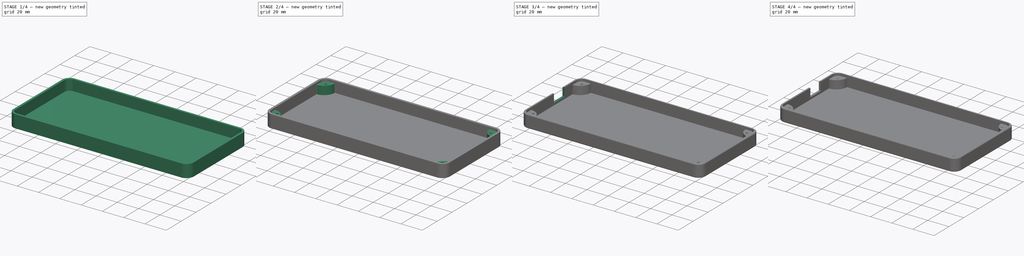
[diagram: build sequence overview — one tinted view per stage of 4, left to right]
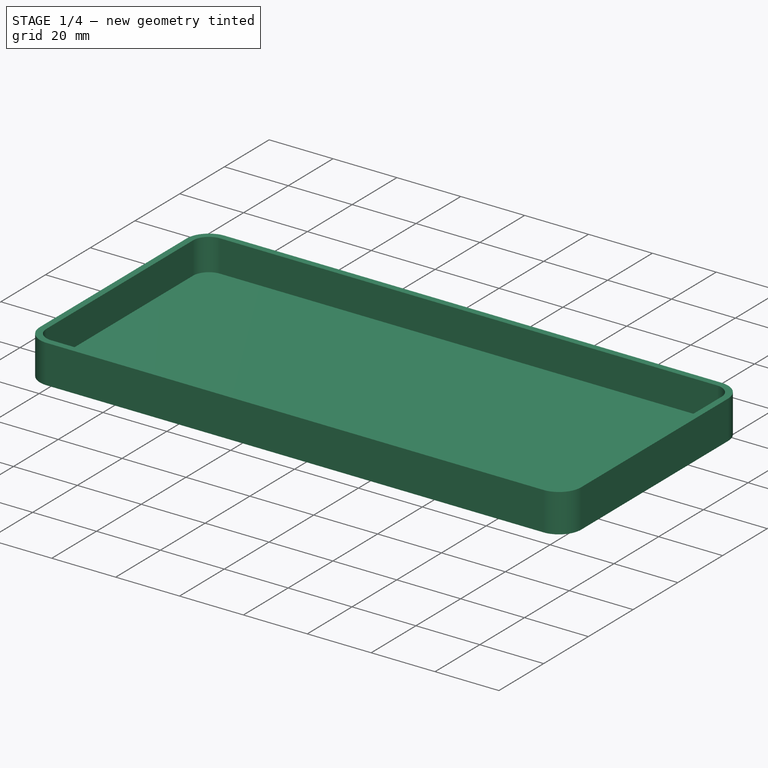
[diagram: stage 1 of 4 — iso view after this stage's code; geometry added in this stage tinted green]
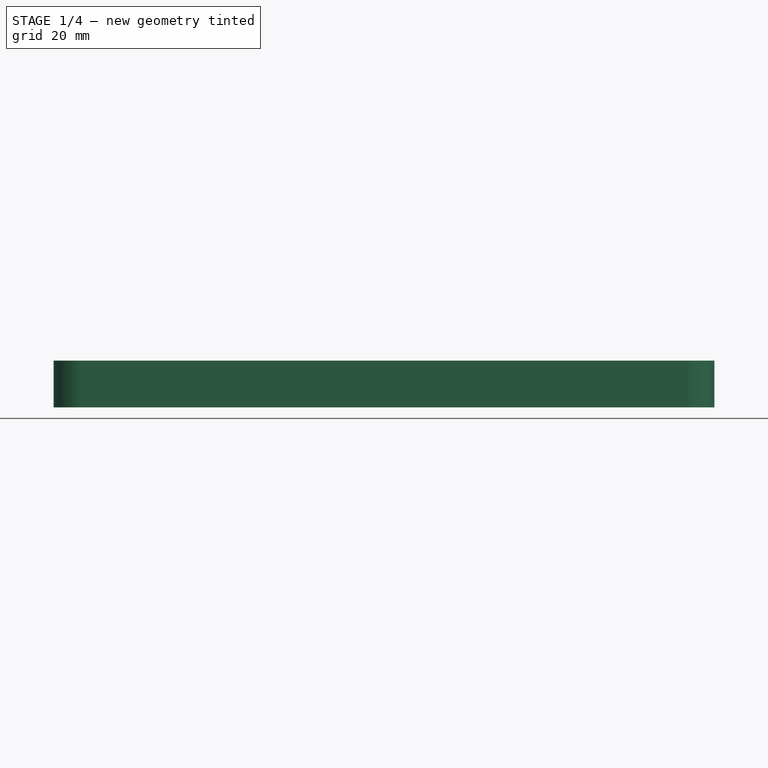
[diagram: stage 1 of 4 — front view after this stage's code; geometry added in this stage tinted green]
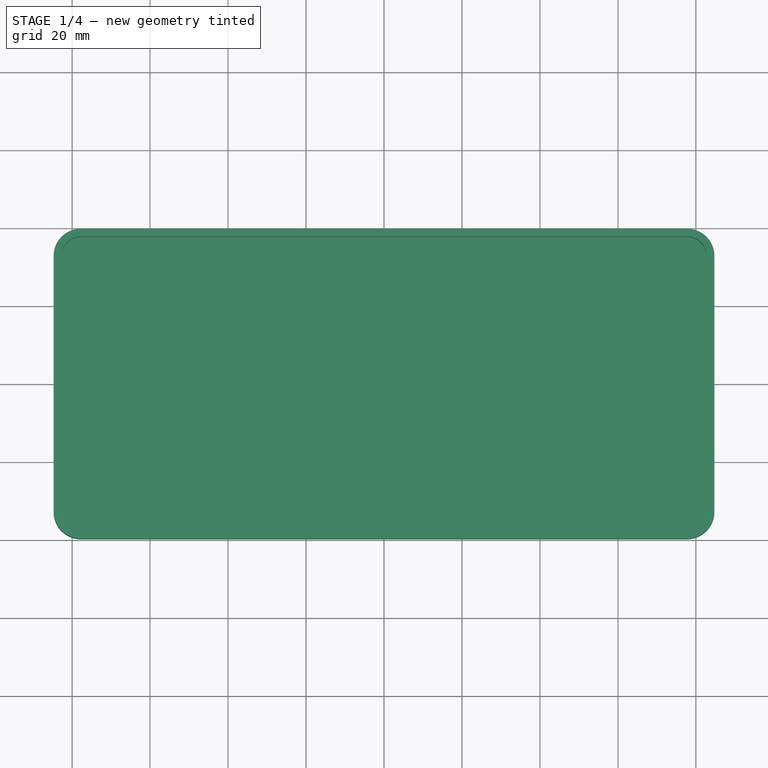
[diagram: stage 1 of 4 — top view after this stage's code; geometry added in this stage tinted green]
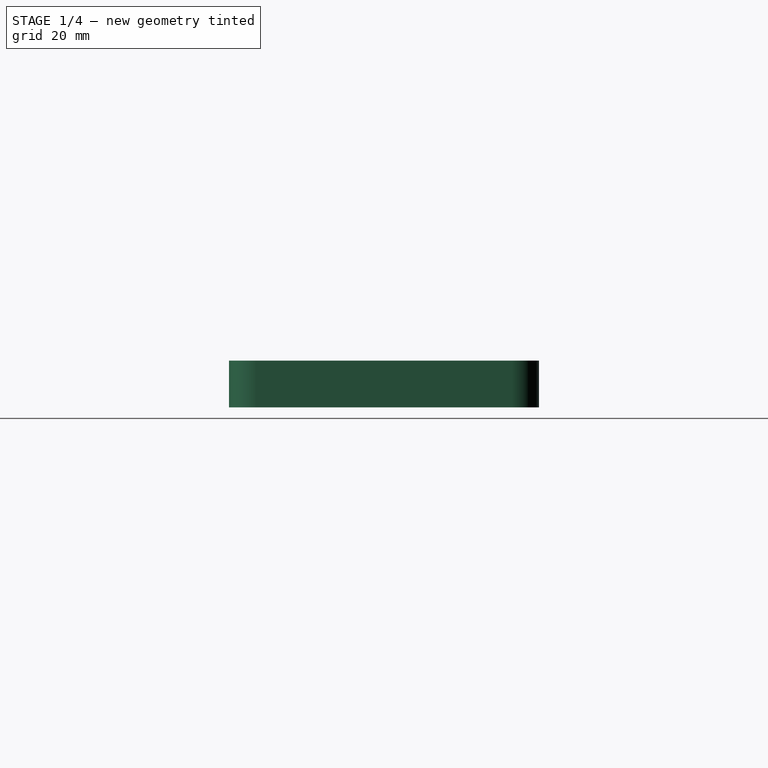
[diagram: stage 1 of 4 — right view after this stage's code; geometry added in this stage tinted green]
FCSTD DOCUMENT  (FreeCAD 0.21R33771 (Git))
Label: printable
License: All rights reserved
LicenseURL: https://en.wikipedia.org/wiki/All_rights_reserved
objects: Sketcher::SketchObject×3, PartDesign::Pad×2, PartDesign::Mirrored×2, PartDesign::Fillet×2, Part::FeaturePython×2, Part::Feature×2, Spreadsheet::Sheet×1, PartDesign::Thickness×1, PartDesign::MultiTransform×1, PartDesign::Pocket×1, Part::Mirroring×1, App::LinkGroup×1, PartDesign::Hole×1, PartDesign::Body×1
note: 26 computed .brp shape members not serialized (recipe doc carries the construction recipe); baked Part::Feature solids carry a one-line shape summary decoded from their .brp

FEATURE [Spreadsheet::Sheet] Spreadsheet
  cells = A2='box_width; B2(box_width)==75 + B14; A3='box_length; B3(box_length)==165 + B14; A4='box_corner_radius; B4(box_corner_radius)=5; A5='box_height; B5(box_height)=10; A6='box_outter_thickness; B6(box_outter_thickness)=2; A7='lug_height; B7(lug_height)==B5 - B10 - B14; A8='lug_radius; B8(lug_radius)=10; A9='screw_thread_dia; B9(screw_thread_dia)=2; A10='board_height; B10(board_height)=1.6; A11='lug_vert_from_mid; B11(lug_vert_from_mid)==B2 / 2; A12='lug_hor_from_mid; B12(lug_hor_from_mid)==B3 / 2; A13='lug_to_screw_thread; B13(lug_to_screw_thread)==5 + B14 / 2; A14='board_to_case_offset; B14(board_to_case_offset)=0.5; A15='lug_width; B15(lug_width)=5; A16='logo_size; B16(logo_size)=50
FEATURE [Sketcher::SketchObject] Sketch
  FullyConstrained = true
  MapMode = 5
  Support = -> [XY_Plane001]
  expr: Constraints[20] = Spreadsheet.box_width
  expr: Constraints[21] = Spreadsheet.box_length
  sketch-geometry (10):
    g0: ArcOfCircle CenterX=-77.75 CenterY=32.75 CenterZ=0 NormalX=0 NormalY=0 NormalZ=1 AngleXU=0 Radius=5 StartAngle=1.5708 EndAngle=3.14159
    g1: LineSegment StartX=-77.75 StartY=37.75 StartZ=0 EndX=77.75 EndY=37.75 EndZ=0
    g2: ArcOfCircle CenterX=77.75 CenterY=32.75 CenterZ=0 NormalX=0 NormalY=0 NormalZ=1 AngleXU=0 Radius=5 StartAngle=-4.17e-14 EndAngle=1.5708
    g3: LineSegment StartX=82.75 StartY=32.75 StartZ=0 EndX=82.75 EndY=-32.75 EndZ=0
    g4: ArcOfCircle CenterX=77.75 CenterY=-32.75 CenterZ=0 NormalX=0 NormalY=0 NormalZ=1 AngleXU=0 Radius=5 StartAngle=4.71239 EndAngle=6.28319
    g5: LineSegment StartX=77.75 StartY=-37.75 StartZ=0 EndX=-77.75 EndY=-37.75 EndZ=0
    g6: ArcOfCircle CenterX=-77.75 CenterY=-32.75 CenterZ=0 NormalX=0 NormalY=0 NormalZ=1 AngleXU=0 Radius=5 StartAngle=3.14159 EndAngle=4.71239
    g7: LineSegment StartX=-82.75 StartY=-32.75 StartZ=0 EndX=-82.75 EndY=32.75 EndZ=0
    g8: GeomPoint X=-82.75 Y=37.75 Z=0
    g9: GeomPoint X=82.75 Y=-37.75 Z=0
  constraints (23):
    c: Tangent(g0,g1) = 1.5708
    c: Tangent(g1,g2) = 1.5708
    c: Tangent(g2,g3) = 1.5708
    c: Tangent(g3,g4) = 1.5708
    c: Tangent(g4,g5) = 1.5708
    c: Tangent(g5,g6) = 1.5708
    c: Tangent(g6,g7) = 1.5708
    c: Tangent(g7,g0) = 1.5708
    c: Horizontal(g1)
    c: Horizontal(g5)
    c: Vertical(g3)
    c: Vertical(g7)
    c: Equal(g0,g2)
    c: Equal(g2,g4)
    c: Equal(g4,g6)
    c: PointOnObject(g8,g1)
    c: PointOnObject(g8,g7)
    c: PointOnObject(g9,g3)
    c: PointOnObject(g9,g5)
    c: Symmetric(g0,g4,g-1)
    c: DistanceY(g5,g0) = 75.5
    c: DistanceX(g0,g2) = 165.5
    c: Radius(g0) = 5
FEATURE [PartDesign::Pad] Pad
  Direction = (0,0,1)
  Length = 10
  Length2 = 10
  Profile = -> Sketch
  ReferenceAxis = -> Sketch [N_Axis]
  Type = 0
  expr: Length = Spreadsheet.box_height
FEATURE [PartDesign::Thickness] Thickness
  Base = -> Pad [Face10]
  BaseFeature = -> Pad
  Intersection = false
  Join = 1
  Mode = 0
  SupportTransform = false
  Value = 2
  expr: Value = Spreadsheet.box_outter_thickness
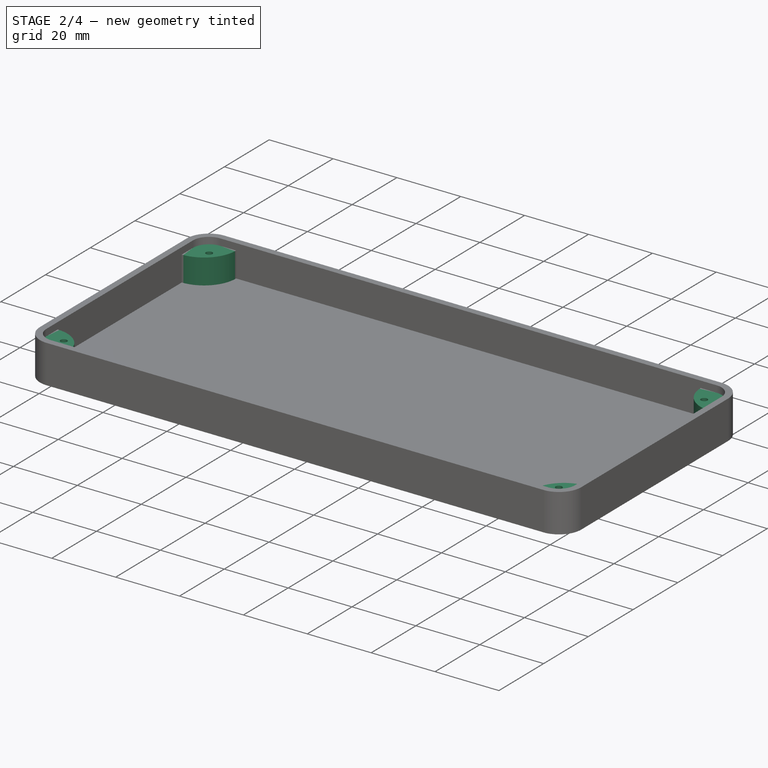
[diagram: stage 2 of 4 — iso view after this stage's code; geometry added in this stage tinted green]
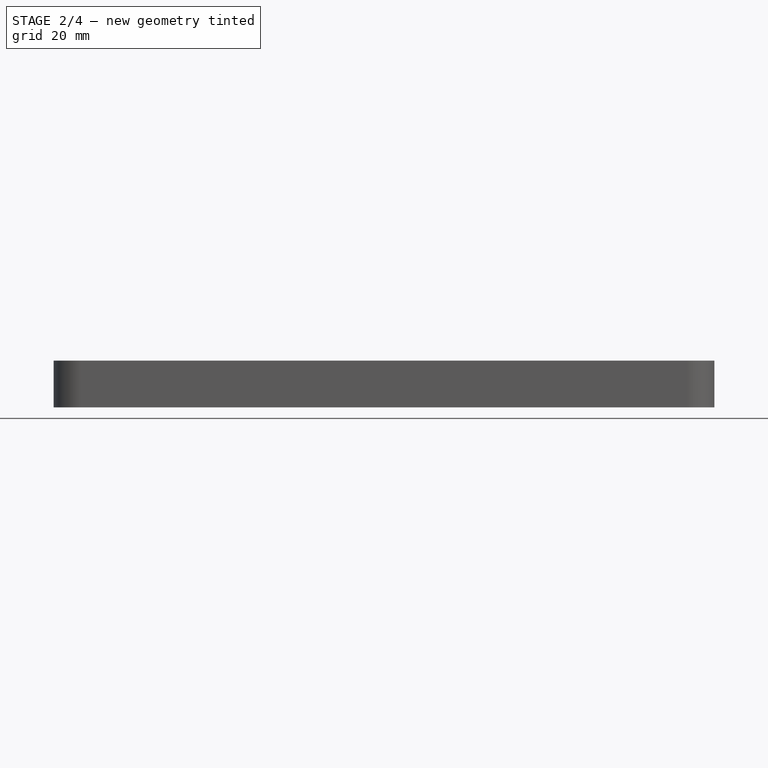
[diagram: stage 2 of 4 — front view after this stage's code; geometry added in this stage tinted green]
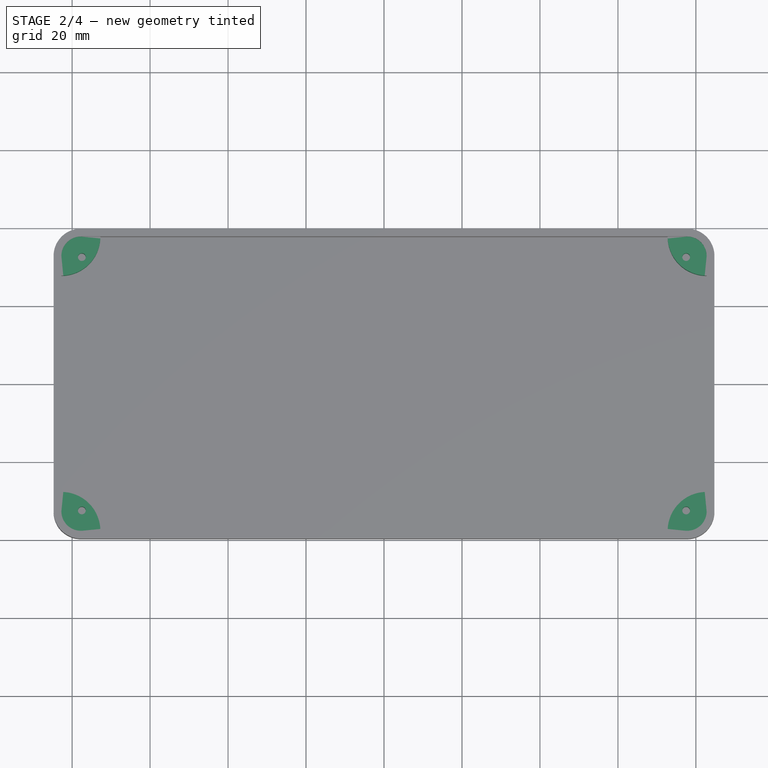
[diagram: stage 2 of 4 — top view after this stage's code; geometry added in this stage tinted green]
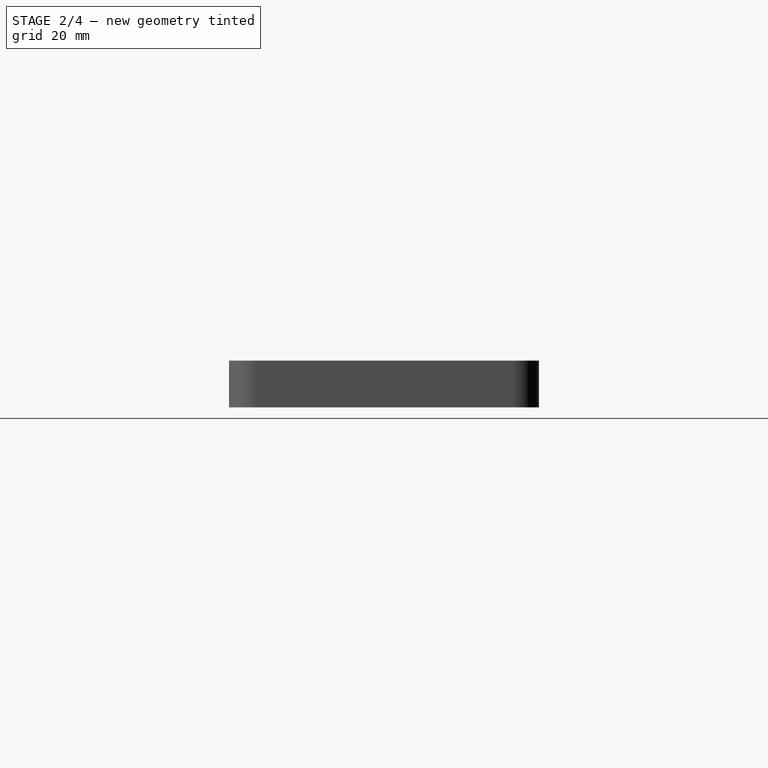
[diagram: stage 2 of 4 — right view after this stage's code; geometry added in this stage tinted green]
FEATURE [Sketcher::SketchObject] Sketch001
  ExternalGeometry = -> [Thickness]
  FullyConstrained = true
  MapMode = 5
  Support = -> [Thickness]
  expr: Constraints[0] = Spreadsheet.screw_thread_dia
  expr: Constraints[11] = Spreadsheet.lug_radius
  expr: Constraints[14] = Spreadsheet.box_corner_radius
  expr: Constraints[1] = Spreadsheet.lug_to_screw_thread
  expr: Constraints[2] = Spreadsheet.lug_to_screw_thread
  expr: Constraints[7] = Spreadsheet.lug_width
  expr: Constraints[8] = Spreadsheet.lug_width
  sketch-geometry (5):
    g0: Circle CenterX=-77.5 CenterY=32.5 CenterZ=0 NormalX=0 NormalY=0 NormalZ=1 AngleXU=0 Radius=1
    g1: LineSegment StartX=-77.75 StartY=37.75 StartZ=0 EndX=-72.75 EndY=37.75 EndZ=0
    g2: LineSegment StartX=-82.75 StartY=32.75 StartZ=0 EndX=-82.75 EndY=27.75 EndZ=0
    g3: ArcOfCircle CenterX=-82.75 CenterY=37.75 CenterZ=0 NormalX=0 NormalY=0 NormalZ=1 AngleXU=0 Radius=10 StartAngle=4.71239 EndAngle=6.28319
    g4: ArcOfCircle CenterX=-77.75 CenterY=32.75 CenterZ=0 NormalX=0 NormalY=0 NormalZ=1 AngleXU=0 Radius=5 StartAngle=1.5708 EndAngle=3.14159
  constraints (15):
    c: Diameter(g0) = 2
    c: DistanceY(g0,g-3) = 5.25
    c: DistanceX(g-4,g0) = 5.25
    c: Coincident(g1,g-3)
    c: Horizontal(g1)
    c: Coincident(g2,g-4)
    c: PointOnObject(g2,g-4)
    c: DistanceX(g1,g1) = 5
    c: DistanceY(g2,g2) = 5
    c: Coincident(g3,g1)
    c: Coincident(g3,g2)
    c: Radius(g3) = 10
    c: Coincident(g4,g2)
    c: Coincident(g4,g1)
    c: Radius(g4) = 5
FEATURE [PartDesign::Pad] Pad001
  BaseFeature = -> Thickness
  Direction = (0,0,1)
  Length = 7.9
  Length2 = 10
  Profile = -> Sketch001
  ReferenceAxis = -> Sketch001 [N_Axis]
  Type = 0
  expr: Length = Spreadsheet.lug_height
FEATURE [PartDesign::Mirrored] Mirrored
  MirrorPlane = -> Sketch001 [V_Axis]
FEATURE [PartDesign::Mirrored] Mirrored001
  MirrorPlane = -> Sketch001 [H_Axis]
FEATURE [PartDesign::MultiTransform] MultiTransform
  BaseFeature = -> Pad001
  Originals = -> [Pad001]
  Transformations = -> [Mirrored,Mirrored001]
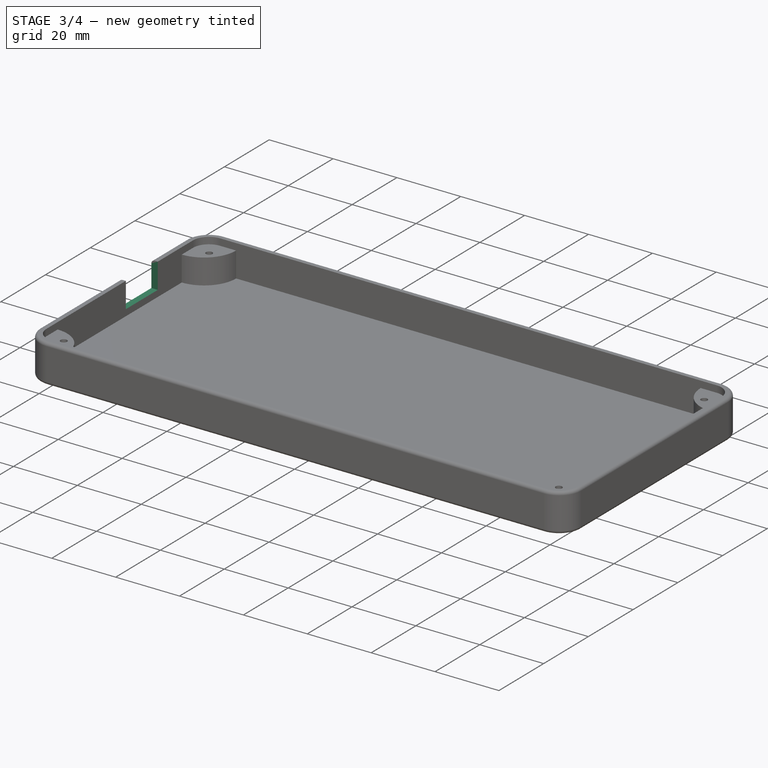
[diagram: stage 3 of 4 — iso view after this stage's code; geometry added in this stage tinted green]
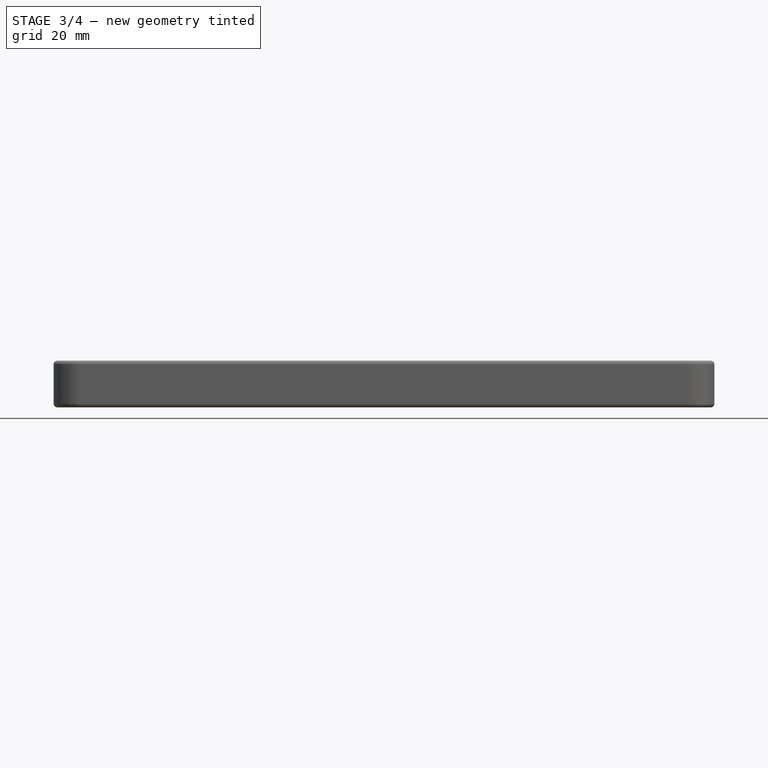
[diagram: stage 3 of 4 — front view after this stage's code; geometry added in this stage tinted green]
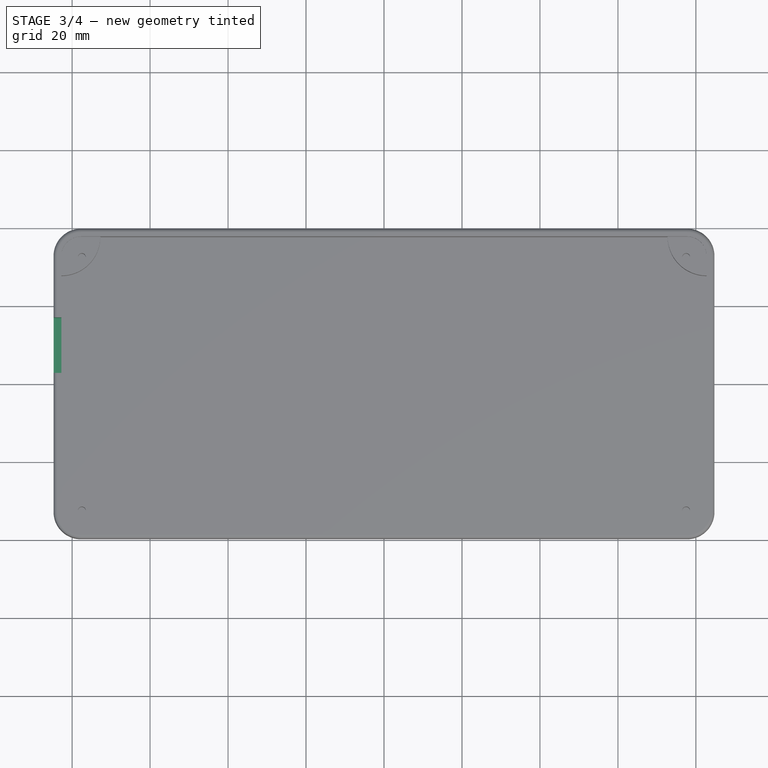
[diagram: stage 3 of 4 — top view after this stage's code; geometry added in this stage tinted green]
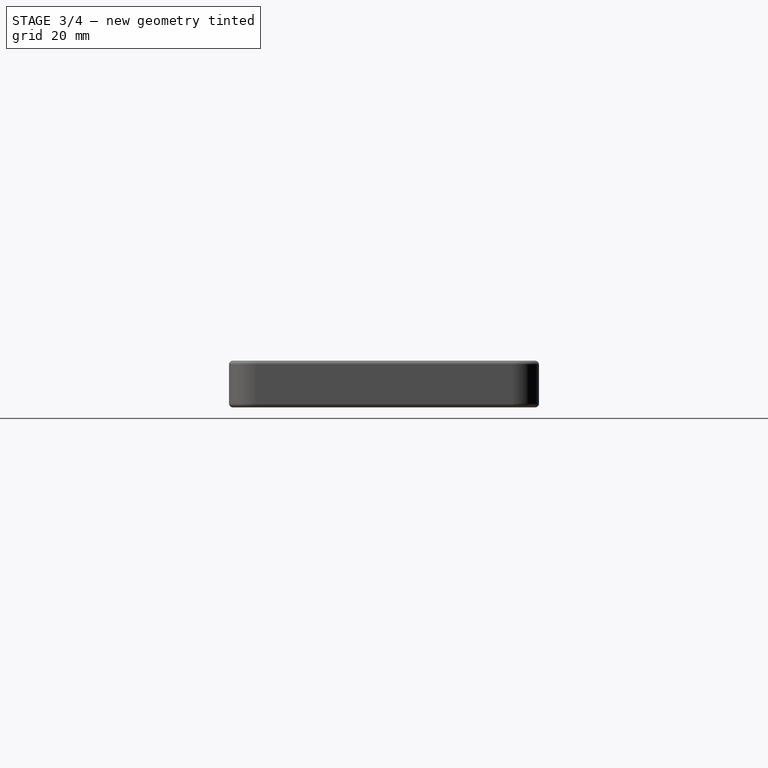
[diagram: stage 3 of 4 — right view after this stage's code; geometry added in this stage tinted green]
FEATURE [Sketcher::SketchObject] Sketch003
  ExternalGeometry = -> [MultiTransform]
  FullyConstrained = true
  MapMode = 5
  Placement = pos=(-84.75,0,0) rot=(0.57735,-0.57735,-0.57735;2.0944rad)
  Support = -> [MultiTransform]
  sketch-geometry (4):
    g0: LineSegment StartX=-17 StartY=10 StartZ=0 EndX=-2.75 EndY=10 EndZ=0
    g1: LineSegment StartX=-2.75 StartY=10 StartZ=0 EndX=-2.75 EndY=2 EndZ=0
    g2: LineSegment StartX=-2.75 StartY=2 StartZ=0 EndX=-17 EndY=2 EndZ=0
    g3: LineSegment StartX=-17 StartY=2 StartZ=0 EndX=-17 EndY=10 EndZ=0
  constraints (12):
    c: Coincident(g0,g1)
    c: Coincident(g1,g2)
    c: Coincident(g2,g3)
    c: Coincident(g3,g0)
    c: Horizontal(g0)
    c: Horizontal(g2)
    c: Vertical(g1)
    c: Vertical(g3)
    c: PointOnObject(g0,g-3)
    c: DistanceY(g3,g3) = 8
    c: DistanceX(g0,g0) = 14.25
    c: DistanceX(g-4,g0) = 20.75
FEATURE [PartDesign::Pocket] Pocket
  BaseFeature = -> MultiTransform
  Direction = (1,0,0)
  Length = 5
  Length2 = 5
  Profile = -> Sketch003
  ReferenceAxis = -> Sketch003 [N_Axis]
  Type = 0
FEATURE [PartDesign::Fillet] Fillet
  Base = -> Pocket [Edge65,Edge67,Edge69,Edge71,Edge73,Edge75,Edge60,Edge63]
  BaseFeature = -> Pocket
  Radius = 1
  SupportTransform = false
  UseAllEdges = false
FEATURE [PartDesign::Fillet] Fillet001
  Base = -> Fillet [Edge18,Edge19,Edge20,Edge21,Edge22,Edge23,Edge6,Edge3,Edge11]
  BaseFeature = -> Fillet
  Radius = 1
  SupportTransform = false
  UseAllEdges = false
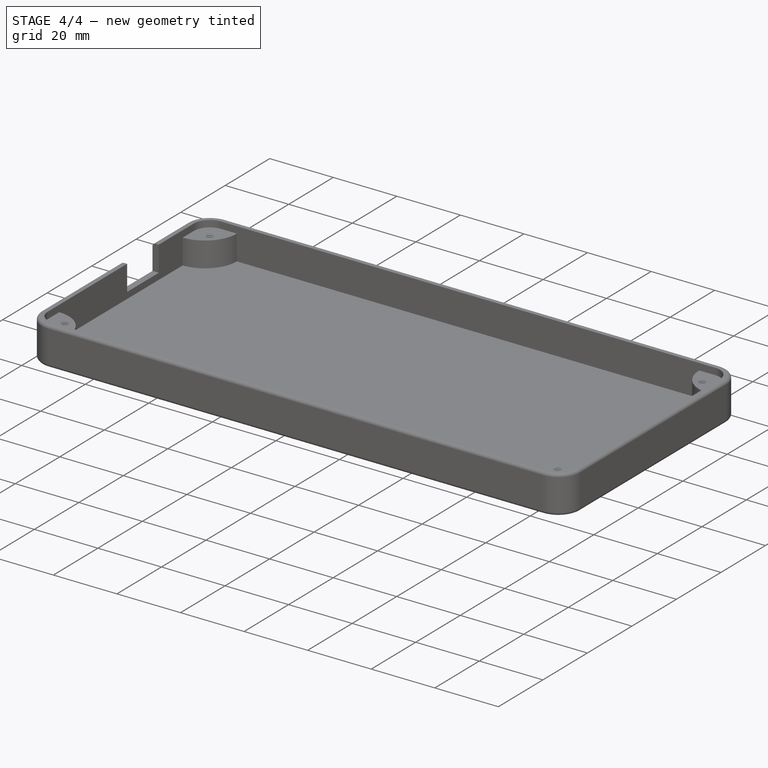
[diagram: stage 4 of 4 — iso view after this stage's code; geometry added in this stage tinted green]
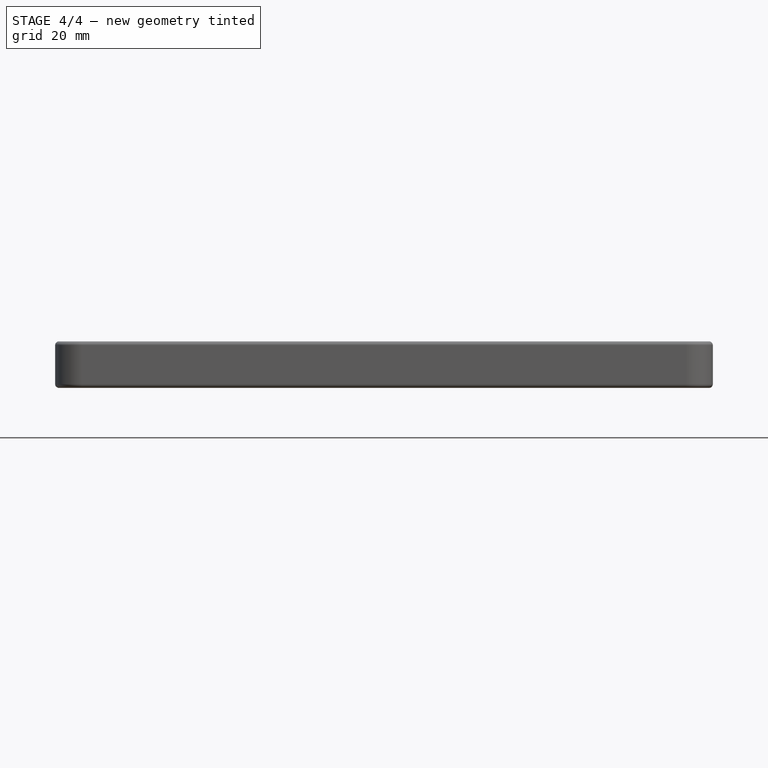
[diagram: stage 4 of 4 — front view after this stage's code; geometry added in this stage tinted green]
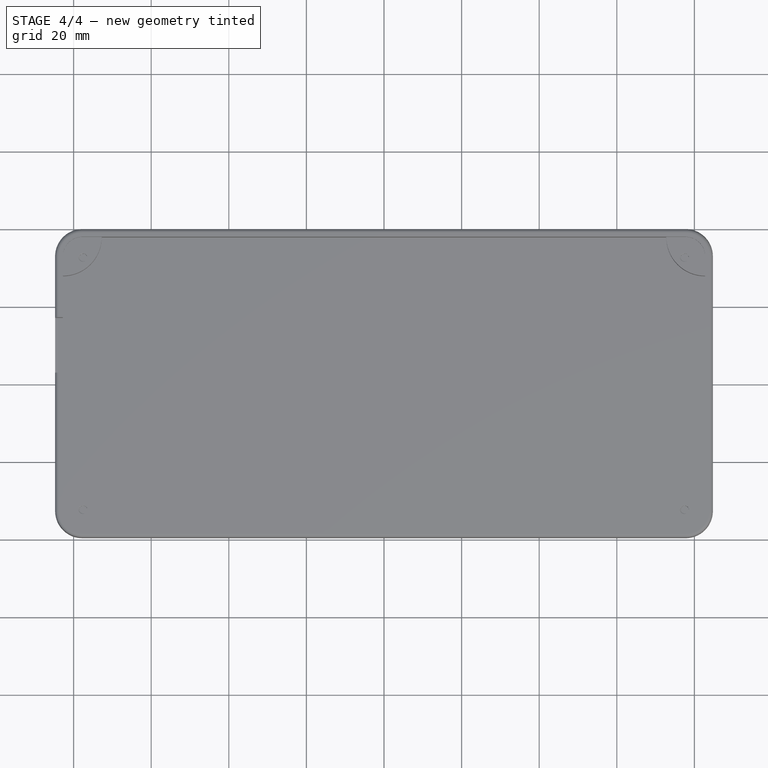
[diagram: stage 4 of 4 — top view after this stage's code; geometry added in this stage tinted green]
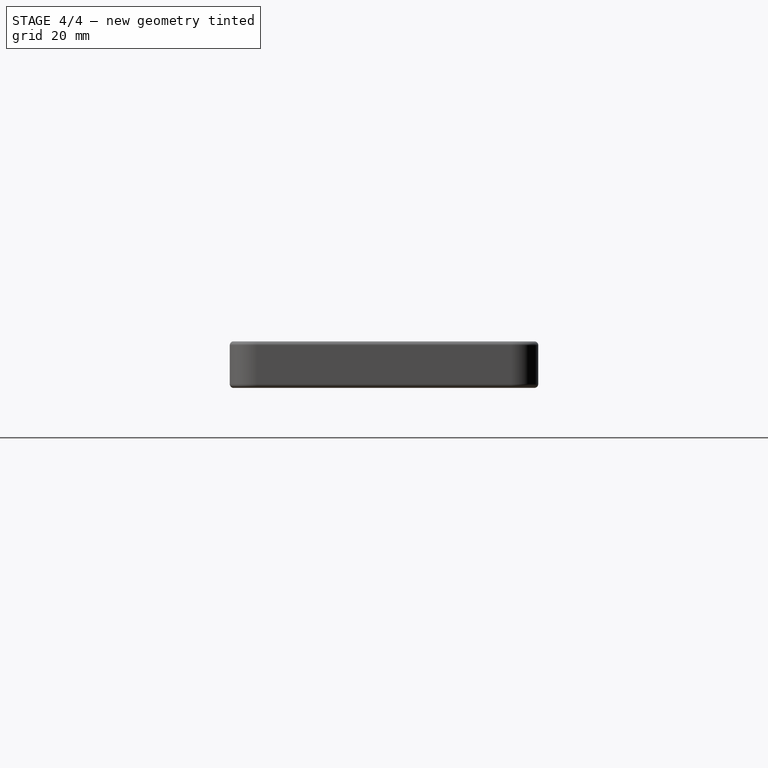
[diagram: stage 4 of 4 — right view after this stage's code; geometry added in this stage tinted green]
FEATURE [Part::FeaturePython] Tube  # WARN: FeaturePython — macro-defined, semantics opaque (R4)
  AttacherType = Attacher::AttachEngine3D
  Height = 0.001
  InnerRadius = 12.5
  OuterRadius = 13.5
  Placement = pos=(0,0,-12) rot=(0,0,1;0rad)
FEATURE [Part::Feature] path21_008  label="path21_009"
  shape: bbox 89.15 x 90.07 x 2e-07 mm, 1 faces, 0 solids (baked)
FEATURE [Part::FeaturePython] Clone  label="path21_010"  # Draft clone (typed FeaturePython)
  AttacherType = Attacher::AttachEngine3D
  Fuse = false
  Objects = -> [path21_008]
  Placement = pos=(-78.0602,23.9596,-12) rot=(0,0,1;0rad)
  Scale = (0.25,0.25,0.25)
FEATURE [Part::Mirroring] Mirror  label="path21_010 (mirrored)"
  Base = (-46.6259,6.38291,0)
  Normal = (0.161242,0.986915,0)
  Placement = pos=(-42.4965,-9.61758,0) rot=(0,0,1;3.46721rad)
  Source = -> Clone
FEATURE [App::LinkGroup] LinkGroup
  ElementList = -> [Tube,Mirror]
  LinkMode = 0
FEATURE [Part::Feature] Projection_Object  label="Projection Object"
  Placement = pos=(0,0,0.25) rot=(0,0,1;0rad)
  shape: bbox 27.02 x 27.02 x 2.021 mm, 116 faces, 2 solids (baked)
FEATURE [PartDesign::Hole] Hole
  BaseFeature = -> Fillet001
  CustomThreadClearance = 0
  Depth = 8
  DepthType = 0
  Diameter = 2.07
  DrillForDepth = false
  DrillPoint = 0
  DrillPointAngle = 118
  HoleCutCountersinkAngle = 90
  HoleCutCustomValues = false
  HoleCutDepth = 0
  HoleCutDiameter = 6.1
  HoleCutType = 0
  ModelThread = true
  Profile = -> Fillet001 [Edge121,Edge123,Edge118,Edge116]
  Tapered = false
  TaperedAngle = 90
  ThreadClass = 0
  ThreadDepth = 8
  ThreadDepthType = 0
  ThreadDirection = 0
  ThreadFit = 0
  ThreadSize = 8
  ThreadType = 1
  Threaded = true
  UseCustomThreadClearance = false
FEATURE [PartDesign::Body] Body001
  Group = -> [Sketch,Pad,Thickness,Sketch001,Pad001,MultiTransform,Mirrored,Mirrored001,Sketch003,Pocket,Fillet,Fillet001,Hole]
  Origin = -> Origin001
  Tip = -> Hole
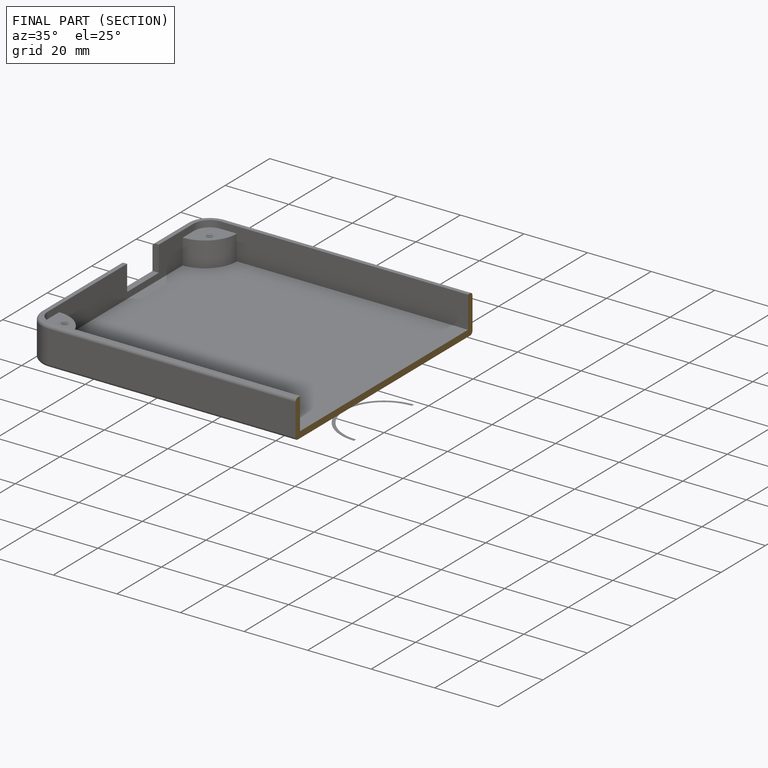
[diagram: finished part — half-section view (interior)]
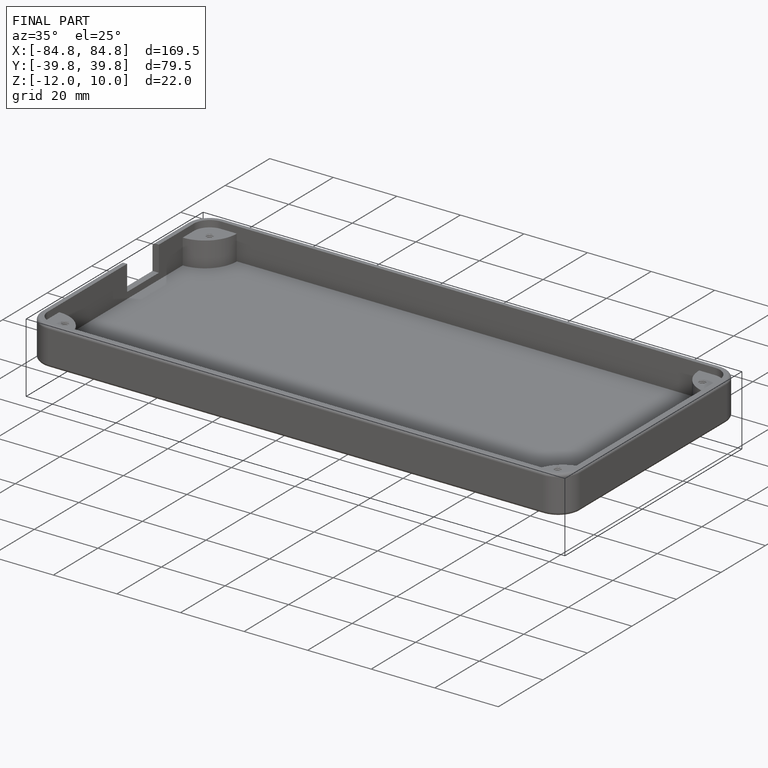
[diagram: finished part — iso view with bounding-box wireframe]
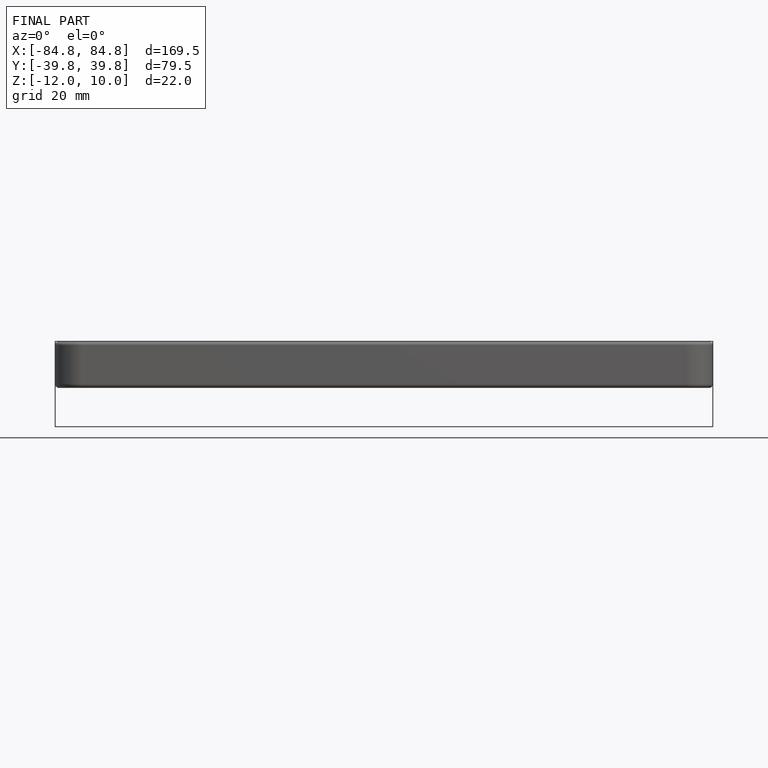
[diagram: finished part — front view with bounding-box wireframe]
